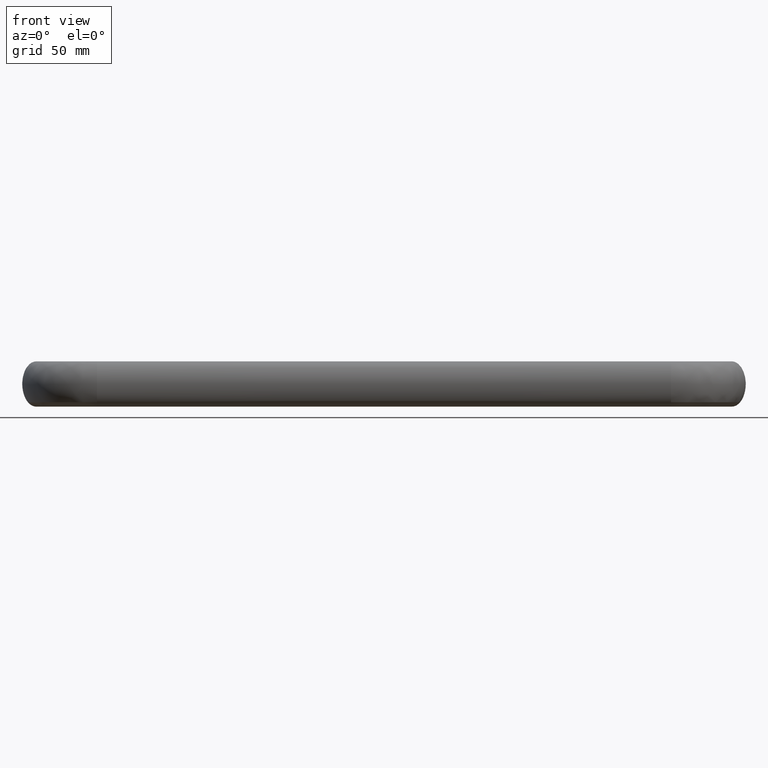
[diagram: clean part render]
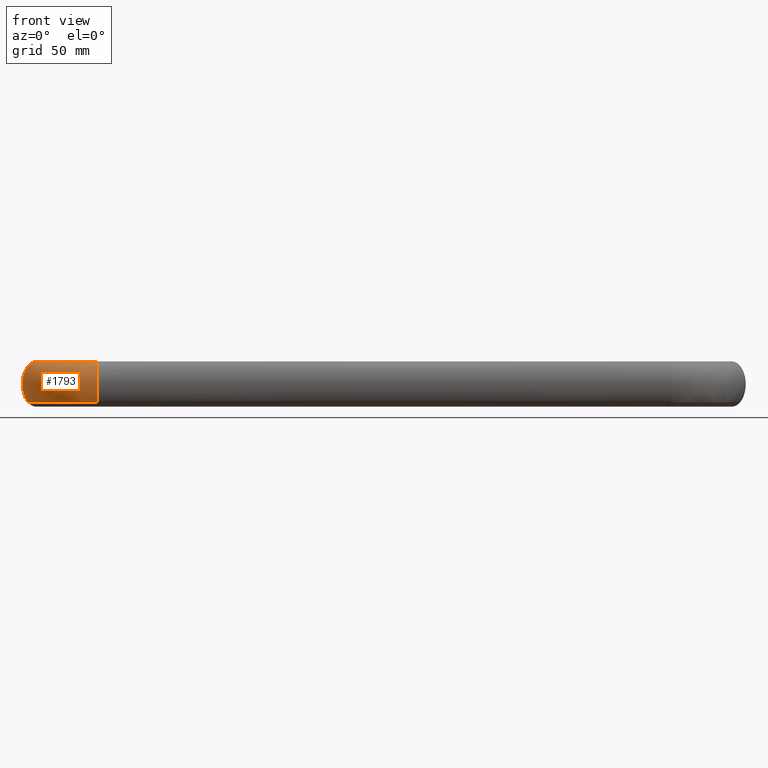
[diagram: same view with one face highlighted and labeled with its STEP entity id]
A machine part, front view. The second image highlights one B-rep face of the part: STEP entity #1793.
In plain terms, the highlighted face is a freeform B-spline surface patch.
Its self-contained STEP definition (entity closure, byte-faithful):
#1496=CARTESIAN_POINT('',(35.0,-48.0,13.0));
#1497=VERTEX_POINT('',#1496);
#1505=CARTESIAN_POINT('',(35.0,-52.702026031346250,-10.516608836256699));
#1506=VERTEX_POINT('',#1505);
#1507=CARTESIAN_POINT('',(35.0,-52.702026031346250,-10.516608836256699));
#1508=CARTESIAN_POINT('',(35.0,-53.040959230750353,-10.116656518417599));
#1509=CARTESIAN_POINT('',(35.0,-53.360662054242667,-9.673700472705871));
#1510=CARTESIAN_POINT('',(35.0,-55.137815228878502,-6.785826563922671));
#1511=CARTESIAN_POINT('',(35.0,-56.0,-3.403392041388941));
#1512=CARTESIAN_POINT('',(35.0,-56.0,3.403392041388945));
#1513=CARTESIAN_POINT('',(35.0,-55.137815228878502,6.785826563922671));
#1514=CARTESIAN_POINT('',(35.0,-52.916373759799299,10.395668951176340));
#1515=CARTESIAN_POINT('',(35.0,-52.028951842967203,11.359223048605340));
#1516=CARTESIAN_POINT('',(35.0,-50.093983074874203,12.661644796688099));
#1517=CARTESIAN_POINT('',(35.0,-49.047197551196597,13.0));
#1518=CARTESIAN_POINT('',(35.0,-48.0,13.0));
#1519=B_SPLINE_CURVE_WITH_KNOTS('',3,(#1507,#1508,#1509,#1510,#1511,#1512,#1513,#1514,#1515,#1516,#1517,#1518),.UNSPECIFIED.,.F.,.U.,(4,2,2,2,2,4),(0.600000000052966,0.625000000000000,0.750000000000000,0.875000000000000,0.937500000000000,1.0),.UNSPECIFIED.);
#1520=EDGE_CURVE('',#1506,#1497,#1519,.T.);
#1624=CARTESIAN_POINT('',(-4.702026030269138,-13.0,-10.516608837527739));
#1625=CARTESIAN_POINT('',(-5.040959229395682,-13.0,-10.116656520294541));
#1626=CARTESIAN_POINT('',(-5.360662053615156,-13.0,-9.673700473725608));
#1627=CARTESIAN_POINT('',(-7.137815228878500,-13.0,-6.785826563922671));
#1628=CARTESIAN_POINT('',(-8.0,-13.0,-3.403392041388941));
#1629=CARTESIAN_POINT('',(-8.0,-13.0,3.403392041388945));
#1630=CARTESIAN_POINT('',(-7.137815228878500,-13.0,6.785826563922671));
#1631=CARTESIAN_POINT('',(-4.916373759799321,-13.0,10.395668951176340));
#1632=CARTESIAN_POINT('',(-4.028951842967196,-13.0,11.359223048605340));
#1633=CARTESIAN_POINT('',(-2.093983074874240,-13.0,12.661644796688099));
#1634=CARTESIAN_POINT('',(-1.047197551196596,-13.0,13.0));
#1635=CARTESIAN_POINT('',(1.951564E-015,-13.0,13.0));
#1636=CARTESIAN_POINT('',(-4.701986561503823,-18.197832790088299,-10.516608837527739));
#1637=CARTESIAN_POINT('',(-5.040919265967124,-18.242206296086170,-10.116656520294541));
#1638=CARTESIAN_POINT('',(-5.360621621360604,-18.284062140316760,-9.673700473725608));
#1639=CARTESIAN_POINT('',(-7.137772177388020,-18.516728982260801,-6.785826563922671));
#1640=CARTESIAN_POINT('',(-7.999955664275910,-18.629607157680901,-3.403392041388941));
#1641=CARTESIAN_POINT('',(-7.999955664275910,-18.629607157680901,3.403392041388945));
#1642=CARTESIAN_POINT('',(-7.137772177388020,-18.516728982266748,6.785826563922671));
#1643=CARTESIAN_POINT('',(-4.916333982353740,-18.225895429830750,10.395668951176340));
#1644=CARTESIAN_POINT('',(-4.028913358661635,-18.109713179604601,11.359223048605340));
#1645=CARTESIAN_POINT('',(-2.093947378887575,-17.856384947173151,12.661644796688099));
#1646=CARTESIAN_POINT('',(-1.047163344783426,-17.719338638802249,13.0));
#1647=CARTESIAN_POINT('',(0.000032737591510,-17.582238387316082,13.0));
#1648=CARTESIAN_POINT('',(-3.668688504690738,-23.391921456231760,-10.516608837527739));
#1649=CARTESIAN_POINT('',(-3.998800179367860,-23.480636505220101,-10.116656520294541));
#1650=CARTESIAN_POINT('',(-4.310181994351053,-23.564318044194660,-9.673700473725608));
#1651=CARTESIAN_POINT('',(-6.041080626752930,-24.029484134188699,-6.785826563922671));
#1652=CARTESIAN_POINT('',(-6.880825034822750,-24.255159176943351,-3.403392041388941));
#1653=CARTESIAN_POINT('',(-6.880825034822750,-24.255159176943351,3.403392041388945));
#1654=CARTESIAN_POINT('',(-6.041080626752930,-24.029484134180748,6.785826563922671));
#1655=CARTESIAN_POINT('',(-3.877457336248595,-23.448026521696150,10.395668951176340));
#1656=CARTESIAN_POINT('',(-3.013132637856800,-23.215745709351399,11.359223048605340));
#1657=CARTESIAN_POINT('',(-1.128525930312970,-22.709271721273101,12.661644796688099));
#1658=CARTESIAN_POINT('',(-0.108985433426040,-22.435277821430649,13.0));
#1659=CARTESIAN_POINT('',(0.910956367006005,-22.161176074256129,13.0));
#1660=CARTESIAN_POINT('',(0.308910007498723,-32.994693729991212,-10.516608837527739));
#1661=CARTESIAN_POINT('',(0.012754791052671,-33.165386920971322,-10.116656520294541));
#1662=CARTESIAN_POINT('',(-0.266597185528990,-33.326395330214993,-9.673700473725608));
#1663=CARTESIAN_POINT('',(-1.819449442653615,-34.221403394117551,-6.785826563922671));
#1664=CARTESIAN_POINT('',(-2.572814761147955,-34.655616006454302,-3.403392041388941));
#1665=CARTESIAN_POINT('',(-2.572814761147955,-34.655616006454302,3.403392041388945));
#1666=CARTESIAN_POINT('',(-1.819449442653610,-34.221403394125502,6.785826563922671));
#1667=CARTESIAN_POINT('',(0.121615878750182,-33.102643314239351,10.395668951176340));
#1668=CARTESIAN_POINT('',(0.897033071684656,-32.655720796405497,11.359223048605340));
#1669=CARTESIAN_POINT('',(2.587782445920145,-31.681233805097651,12.661644796688099));
#1670=CARTESIAN_POINT('',(3.502449389542981,-31.154052750638002,13.0));
#1671=CARTESIAN_POINT('',(4.417476357203890,-30.626664191300080,13.0));
#1672=CARTESIAN_POINT('',(3.251606313221114,-37.398749978910153,-10.516608837527739));
#1673=CARTESIAN_POINT('',(2.980572672993807,-37.607040265627937,-10.116656520294541));
#1674=CARTESIAN_POINT('',(2.724916925895460,-37.803512588471982,-9.673700473725608));
#1675=CARTESIAN_POINT('',(1.303786462505978,-38.895656247957497,-6.785826563922671));
#1676=CARTESIAN_POINT('',(0.614325891312594,-39.425509073341793,-3.403392041388941));
#1677=CARTESIAN_POINT('',(0.614325891312594,-39.425509073341793,3.403392041388945));
#1678=CARTESIAN_POINT('',(1.303786462505980,-38.895656247957497,6.785826563922671));
#1679=CARTESIAN_POINT('',(3.080199541742830,-37.530476673600603,10.395668951176340));
#1680=CARTESIAN_POINT('',(3.789841421489070,-36.985114443003802,11.359223048605340));
#1681=CARTESIAN_POINT('',(5.337171781259700,-35.795985728188853,12.661644796688099));
#1682=CARTESIAN_POINT('',(6.174251452863451,-35.152687115288053,13.0));
#1683=CARTESIAN_POINT('',(7.011660609207886,-34.509135292250342,13.0));
#1684=CARTESIAN_POINT('',(10.601250021082681,-44.748393686786201,-10.516608837527739));
#1685=CARTESIAN_POINT('',(10.392959734366730,-45.019427327011662,-10.116656520294541));
#1686=CARTESIAN_POINT('',(10.196487411524920,-45.275083074107783,-9.673700473725608));
#1687=CARTESIAN_POINT('',(9.104343752042562,-46.696213537494103,-6.785826563922671));
#1688=CARTESIAN_POINT('',(8.574490926644391,-47.385674108701387,-3.403392041388941));
#1689=CARTESIAN_POINT('',(8.574490926644391,-47.385674108701387,3.403392041388945));
#1690=CARTESIAN_POINT('',(9.104343752042562,-46.696213537494103,6.785826563922671));
#1691=CARTESIAN_POINT('',(10.469523326395500,-44.919800458261200,10.395668951176340));
#1692=CARTESIAN_POINT('',(11.014885556980380,-44.210158578526901,11.359223048605340));
#1693=CARTESIAN_POINT('',(12.204014271815160,-42.662828218736401,12.661644796688099));
#1694=CARTESIAN_POINT('',(12.847312884692160,-41.825748547156500,13.0));
#1695=CARTESIAN_POINT('',(13.490864707733850,-40.988339390808079,13.0));
#1696=CARTESIAN_POINT('',(15.005306270095531,-47.691089992539560,-10.516608837527739));
#1697=CARTESIAN_POINT('',(14.834613079115810,-47.987245208988092,-10.116656520294541));
#1698=CARTESIAN_POINT('',(14.673604669872260,-48.266597185572820,-9.673700473725608));
#1699=CARTESIAN_POINT('',(13.778596605970399,-49.819449442704098,-6.785826563922671));
#1700=CARTESIAN_POINT('',(13.344383993649901,-50.572814761206608,-3.403392041388941));
#1701=CARTESIAN_POINT('',(13.344383993649901,-50.572814761206608,3.403392041388945));
#1702=CARTESIAN_POINT('',(13.778596605962459,-49.819449442704098,6.785826563922671));
#1703=CARTESIAN_POINT('',(14.897356685855661,-47.878384121289997,10.395668951176340));
#1704=CARTESIAN_POINT('',(15.344279203681250,-47.102966928342497,11.359223048605340));
#1705=CARTESIAN_POINT('',(16.318766194980348,-45.412217554131992,12.661644796688099));
#1706=CARTESIAN_POINT('',(16.845947249447551,-44.497550610485199,13.0));
#1707=CARTESIAN_POINT('',(17.373335808785079,-43.582523642825343,13.0));
#1708=CARTESIAN_POINT('',(24.608078543681380,-51.668688504652373,-10.516608837527739));
#1709=CARTESIAN_POINT('',(24.519363494692652,-51.998800179327013,-10.116656520294541));
#1710=CARTESIAN_POINT('',(24.435681955717961,-52.310181994307122,-9.673700473725608));
#1711=CARTESIAN_POINT('',(23.970515865723200,-54.041080626702403,-6.785826563922671));
#1712=CARTESIAN_POINT('',(23.744840822952352,-54.880825034764101,-3.403392041388941));
#1713=CARTESIAN_POINT('',(23.744840822952352,-54.880825034764101,3.403392041388945));
#1714=CARTESIAN_POINT('',(23.970515865731151,-54.041080626702403,6.785826563922671));
#1715=CARTESIAN_POINT('',(24.551973478208701,-51.877457336208302,10.395668951176340));
#1716=CARTESIAN_POINT('',(24.784254290561751,-51.013132637829600,11.359223048605340));
#1717=CARTESIAN_POINT('',(25.290728278648800,-49.128525930260800,12.661644796688099));
#1718=CARTESIAN_POINT('',(25.564722178483699,-48.108985433397798,13.0));
#1719=CARTESIAN_POINT('',(25.838823925658620,-47.089043632964703,13.0));
#1720=CARTESIAN_POINT('',(29.802167209976979,-52.701986561511710,-10.516608837527739));
#1721=CARTESIAN_POINT('',(29.757793703979409,-53.040919265972803,-10.116656520294541));
#1722=CARTESIAN_POINT('',(29.715937859748909,-53.360621621364437,-9.673700473725608));
#1723=CARTESIAN_POINT('',(29.483271017805350,-55.137772177390197,-6.785826563922671));
#1724=CARTESIAN_POINT('',(29.370392842397450,-55.999955664293402,-3.403392041388941));
#1725=CARTESIAN_POINT('',(29.370392842397450,-55.999955664293402,3.403392041388945));
#1726=CARTESIAN_POINT('',(29.483271017799400,-55.137772177407612,6.785826563922671));
#1727=CARTESIAN_POINT('',(29.774104570240699,-52.916333982374901,10.395668951176340));
#1728=CARTESIAN_POINT('',(29.890286820460648,-52.028913358676299,11.359223048605340));
#1729=CARTESIAN_POINT('',(30.143615052885551,-50.093947378906002,12.661644796688099));
#1730=CARTESIAN_POINT('',(30.280661361262101,-49.047163344793013,13.0));
#1731=CARTESIAN_POINT('',(30.417761612747970,-47.999967262420853,13.0));
#1732=CARTESIAN_POINT('',(35.0,-52.702026030269117,-10.516608837527739));
#1733=CARTESIAN_POINT('',(35.0,-53.040959229395668,-10.116656520294541));
#1734=CARTESIAN_POINT('',(35.0,-53.360662053615137,-9.673700473725608));
#1735=CARTESIAN_POINT('',(35.0,-55.137815228878502,-6.785826563922671));
#1736=CARTESIAN_POINT('',(35.0,-56.0,-3.403392041388941));
#1737=CARTESIAN_POINT('',(35.0,-56.0,3.403392041388945));
#1738=CARTESIAN_POINT('',(35.0,-55.137815228878502,6.785826563922671));
#1739=CARTESIAN_POINT('',(35.0,-52.916373759799299,10.395668951176340));
#1740=CARTESIAN_POINT('',(35.0,-52.028951842967203,11.359223048605340));
#1741=CARTESIAN_POINT('',(35.0,-50.093983074874203,12.661644796688099));
#1742=CARTESIAN_POINT('',(35.0,-49.047197551196597,13.0));
#1743=CARTESIAN_POINT('',(35.0,-48.0,13.0));
#1744=B_SPLINE_SURFACE_WITH_KNOTS('',3,3,((#1624,#1636,#1648,#1660,#1672,#1684,#1696,#1708,#1720,#1732),(#1625,#1637,#1649,#1661,#1673,#1685,#1697,#1709,#1721,#1733),(#1626,#1638,#1650,#1662,#1674,#1686,#1698,#1710,#1722,#1734),(#1627,#1639,#1651,#1663,#1675,#1687,#1699,#1711,#1723,#1735),(#1628,#1640,#1652,#1664,#1676,#1688,#1700,#1712,#1724,#1736),(#1629,#1641,#1653,#1665,#1677,#1689,#1701,#1713,#1725,#1737),(#1630,#1642,#1654,#1666,#1678,#1690,#1702,#1714,#1726,#1738),(#1631,#1643,#1655,#1667,#1679,#1691,#1703,#1715,#1727,#1739),(#1632,#1644,#1656,#1668,#1680,#1692,#1704,#1716,#1728,#1740),(#1633,#1645,#1657,#1669,#1681,#1693,#1705,#1717,#1729,#1741),(#1634,#1646,#1658,#1670,#1682,#1694,#1706,#1718,#1730,#1742),(#1635,#1647,#1659,#1671,#1683,#1695,#1707,#1719,#1731,#1743)),.UNSPECIFIED.,.F.,.F.,.U.,(4,2,2,2,2,4),(4,2,2,2,4),(0.0,1.997216543655273,11.983299261931631,21.969381980207991,26.962423339346170,31.955464698484349),(0.0,16.779484111020469,33.558968222041010,50.338452333061547,67.117936444081977),.UNSPECIFIED.);
#1745=ORIENTED_EDGE('',*,*,#1520,.T.);
#1746=CARTESIAN_POINT('',(1.986692E-015,-13.0,13.0));
#1747=VERTEX_POINT('',#1746);
#1748=CARTESIAN_POINT('',(1.998401E-015,-13.0,13.0));
#1749=CARTESIAN_POINT('',(0.000032737591510,-17.582238387316082,13.0));
#1750=CARTESIAN_POINT('',(0.910956367006005,-22.161176074256129,13.0));
#1751=CARTESIAN_POINT('',(4.417476357203890,-30.626664191300080,13.0));
#1752=CARTESIAN_POINT('',(7.011660609207886,-34.509135292250342,13.0));
#1753=CARTESIAN_POINT('',(13.490864707733850,-40.988339390808079,13.0));
#1754=CARTESIAN_POINT('',(17.373335808785079,-43.582523642825343,13.0));
#1755=CARTESIAN_POINT('',(25.838823925658620,-47.089043632964703,13.0));
#1756=CARTESIAN_POINT('',(30.417761612747970,-47.999967262420853,13.0));
#1757=CARTESIAN_POINT('',(35.0,-48.0,13.0));
#1758=B_SPLINE_CURVE_WITH_KNOTS('',3,(#1748,#1749,#1750,#1751,#1752,#1753,#1754,#1755,#1756,#1757),.UNSPECIFIED.,.F.,.U.,(4,2,2,2,4),(0.027899645403597,0.057397013060515,0.086894380717434,0.116391748374352,0.145889116031270),.UNSPECIFIED.);
#1759=EDGE_CURVE('',#1747,#1497,#1758,.T.);
#1760=ORIENTED_EDGE('',*,*,#1759,.F.);
#1761=CARTESIAN_POINT('',(-4.702026031346259,-13.0,-10.516608836256699));
#1762=VERTEX_POINT('',#1761);
#1763=CARTESIAN_POINT('',(-4.702026031346259,-13.0,-10.516608836256699));
#1764=CARTESIAN_POINT('',(-5.040959230750358,-13.0,-10.116656518417610));
#1765=CARTESIAN_POINT('',(-5.360662054242685,-13.0,-9.673700472705875));
#1766=CARTESIAN_POINT('',(-7.137815228878500,-13.0,-6.785826563922671));
#1767=CARTESIAN_POINT('',(-8.0,-13.0,-3.403392041388941));
#1768=CARTESIAN_POINT('',(-8.0,-13.0,3.403392041388945));
#1769=CARTESIAN_POINT('',(-7.137815228878500,-13.0,6.785826563922671));
#1770=CARTESIAN_POINT('',(-4.916373759799321,-13.0,10.395668951176340));
#1771=CARTESIAN_POINT('',(-4.028951842967190,-13.0,11.359223048605340));
#1772=CARTESIAN_POINT('',(-2.093983074874240,-13.0,12.661644796688099));
#1773=CARTESIAN_POINT('',(-1.047197551196596,-13.0,13.0));
#1774=CARTESIAN_POINT('',(1.951564E-015,-13.0,13.0));
#1775=B_SPLINE_CURVE_WITH_KNOTS('',3,(#1763,#1764,#1765,#1766,#1767,#1768,#1769,#1770,#1771,#1772,#1773,#1774),.UNSPECIFIED.,.F.,.U.,(4,2,2,2,2,4),(0.600000000052966,0.625000000000000,0.750000000000000,0.875000000000000,0.937500000000000,1.0),.UNSPECIFIED.);
#1776=EDGE_CURVE('',#1762,#1747,#1775,.T.);
#1777=ORIENTED_EDGE('',*,*,#1776,.F.);
#1778=CARTESIAN_POINT('',(-4.702026031346259,-13.0,-10.516608836256699));
#1779=CARTESIAN_POINT('',(-4.701986561503822,-18.197832790088299,-10.516608837527739));
#1780=CARTESIAN_POINT('',(-3.668688504690738,-23.391921456231760,-10.516608837527739));
#1781=CARTESIAN_POINT('',(0.308910007498723,-32.994693729991219,-10.516608837527739));
#1782=CARTESIAN_POINT('',(3.251606313221114,-37.398749978910139,-10.516608837527739));
#1783=CARTESIAN_POINT('',(10.601250021082681,-44.748393686786201,-10.516608837527739));
#1784=CARTESIAN_POINT('',(15.005306270095531,-47.691089992539560,-10.516608837527739));
#1785=CARTESIAN_POINT('',(24.608078543681380,-51.668688504652373,-10.516608837527739));
#1786=CARTESIAN_POINT('',(29.802167209976979,-52.701986561511710,-10.516608837527739));
#1787=CARTESIAN_POINT('',(35.0,-52.702026031346250,-10.516608836256699));
#1788=B_SPLINE_CURVE_WITH_KNOTS('',3,(#1778,#1779,#1780,#1781,#1782,#1783,#1784,#1785,#1786,#1787),.UNSPECIFIED.,.F.,.U.,(4,2,2,2,4),(0.027899645403597,0.057397013060515,0.086894380717434,0.116391748374352,0.145889116031270),.UNSPECIFIED.);
#1789=EDGE_CURVE('',#1762,#1506,#1788,.T.);
#1790=ORIENTED_EDGE('',*,*,#1789,.T.);
#1791=EDGE_LOOP('',(#1745,#1760,#1777,#1790));
#1792=FACE_OUTER_BOUND('',#1791,.T.);
#1793=ADVANCED_FACE('',(#1792),#1744,.F.);